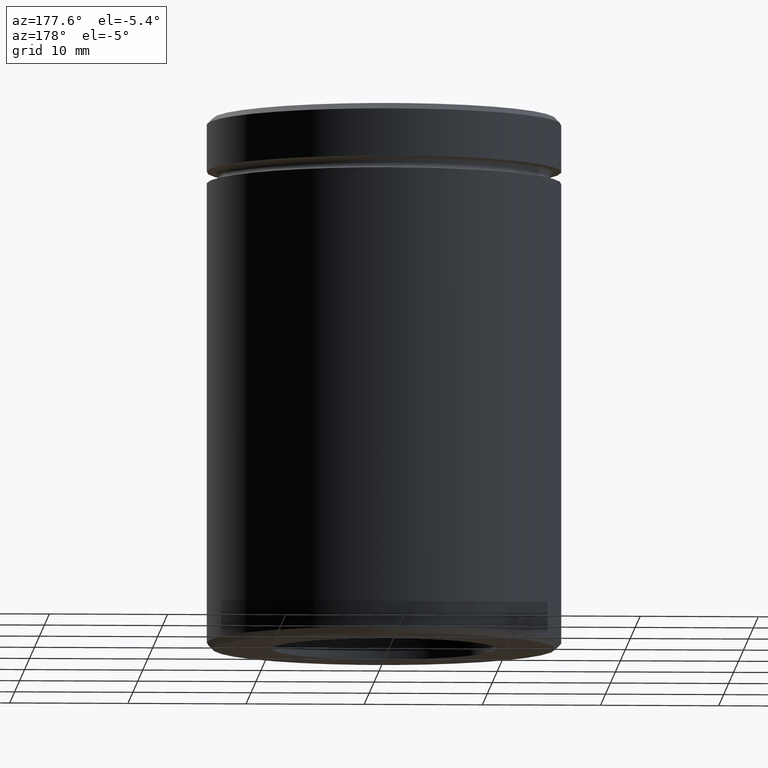
[diagram: clean part render]
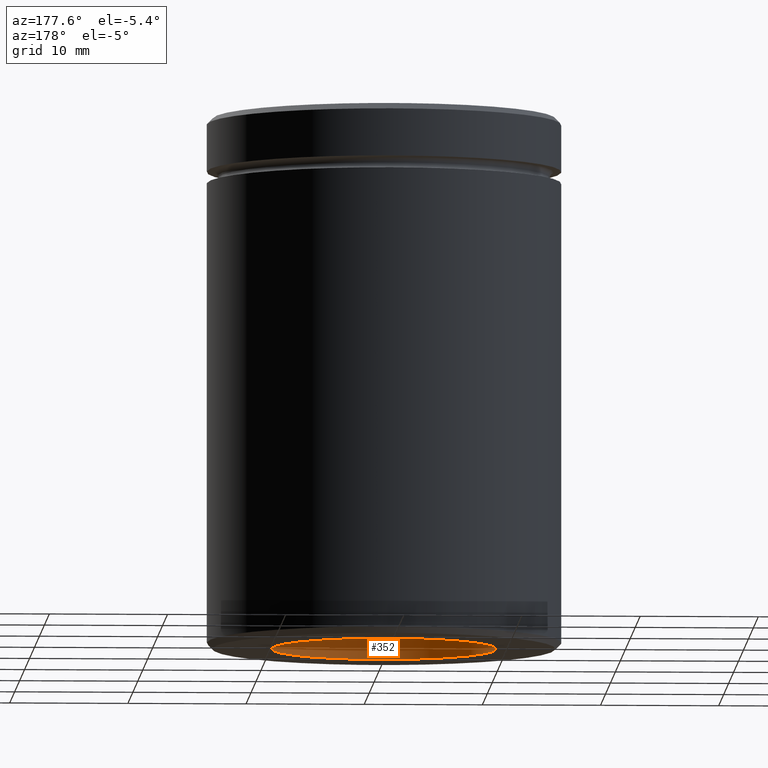
[diagram: same view with one face highlighted and labeled with its STEP entity id]
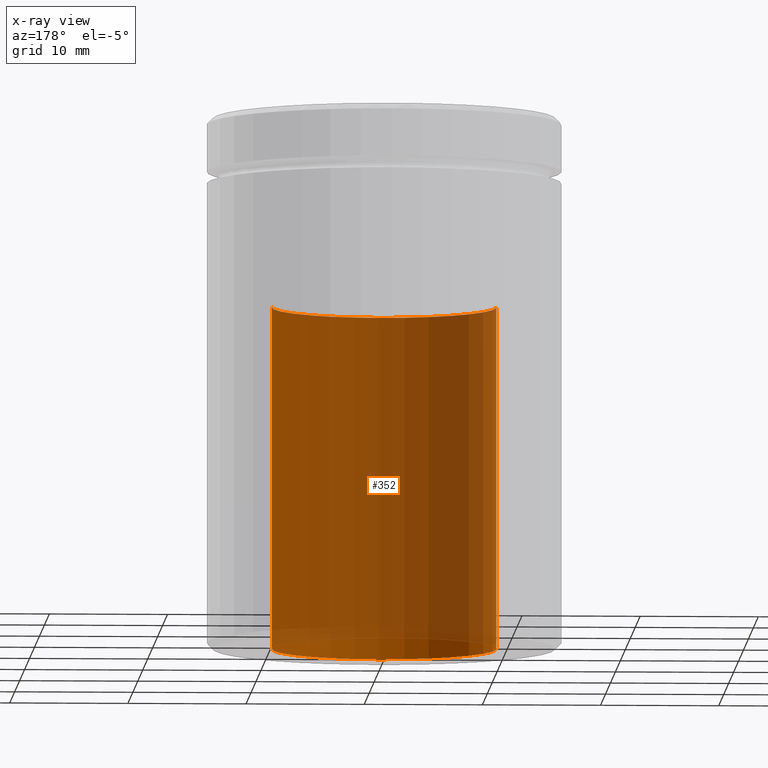
[diagram: x-ray of the same camera — body ghosted, the highlighted face saturated]
A machine part, auxiliary view. The second image highlights one B-rep face of the part: STEP entity #352.
The next image is the same camera in x-ray: the body ghosted, the highlighted face saturated — about 95% of this face is hidden behind the body in this view.
In plain terms, the highlighted cylindrical surface (partial cylindrical patch) has radius 9.5 mm, axis along (-0, -0, -1).
Its self-contained STEP definition (entity closure, byte-faithful):
#24 = CARTESIAN_POINT ( 'NONE',  ( 0.000000000000000000, 0.000000000000000000, -15.99999999999999645 ) ) ;
#30 = VERTEX_POINT ( 'NONE', #514 ) ;
#32 = EDGE_CURVE ( 'NONE', #236, #450, #42, .T. ) ;
#42 = LINE ( 'NONE', #222, #287 ) ;
#97 = DIRECTION ( 'NONE',  ( -0.000000000000000000, -0.000000000000000000, -1.000000000000000000 ) ) ;
#113 = EDGE_LOOP ( 'NONE', ( #402, #527, #526, #225 ) ) ;
#152 = DIRECTION ( 'NONE',  ( 0.000000000000000000, 0.000000000000000000, -1.000000000000000000 ) ) ;
#155 = DIRECTION ( 'NONE',  ( -1.000000000000000000, 0.000000000000000000, 0.000000000000000000 ) ) ;
#164 = DIRECTION ( 'NONE',  ( -1.000000000000000000, 0.000000000000000000, 0.000000000000000000 ) ) ;
#168 = CARTESIAN_POINT ( 'NONE',  ( 9.500000000000000000, 1.163414459189985288E-15, -45.00000000000000000 ) ) ;
#172 = DIRECTION ( 'NONE',  ( -0.000000000000000000, -0.000000000000000000, -1.000000000000000000 ) ) ;
#200 = CYLINDRICAL_SURFACE ( 'NONE', #266, 9.500000000000000000 ) ;
#216 = EDGE_CURVE ( 'NONE', #450, #30, #460, .T. ) ;
#222 = CARTESIAN_POINT ( 'NONE',  ( 9.500000000000000000, 1.163414459189985288E-15, -15.99999999999999645 ) ) ;
#224 = VERTEX_POINT ( 'NONE', #532 ) ;
#225 = ORIENTED_EDGE ( 'NONE', *, *, #279, .F. ) ;
#230 = AXIS2_PLACEMENT_3D ( 'NONE', #512, #253, #164 ) ;
#233 = DIRECTION ( 'NONE',  ( -1.000000000000000000, 0.000000000000000000, 0.000000000000000000 ) ) ;
#236 = VERTEX_POINT ( 'NONE', #451 ) ;
#245 = DIRECTION ( 'NONE',  ( -0.000000000000000000, -0.000000000000000000, -1.000000000000000000 ) ) ;
#253 = DIRECTION ( 'NONE',  ( 0.000000000000000000, 0.000000000000000000, -1.000000000000000000 ) ) ;
#266 = AXIS2_PLACEMENT_3D ( 'NONE', #24, #245, #155 ) ;
#270 = CARTESIAN_POINT ( 'NONE',  ( 0.000000000000000000, 0.000000000000000000, -45.00000000000000000 ) ) ;
#279 = EDGE_CURVE ( 'NONE', #224, #30, #316, .T. ) ;
#287 = VECTOR ( 'NONE', #172, 1000.000000000000000 ) ;
#293 = VECTOR ( 'NONE', #97, 1000.000000000000000 ) ;
#316 = LINE ( 'NONE', #490, #293 ) ;
#325 = FACE_OUTER_BOUND ( 'NONE', #113, .T. ) ;
#352 = ADVANCED_FACE ( 'NONE', ( #325 ), #200, .F. ) ;
#353 = EDGE_CURVE ( 'NONE', #236, #224, #473, .T. ) ;
#367 = AXIS2_PLACEMENT_3D ( 'NONE', #270, #152, #233 ) ;
#402 = ORIENTED_EDGE ( 'NONE', *, *, #353, .F. ) ;
#450 = VERTEX_POINT ( 'NONE', #168 ) ;
#451 = CARTESIAN_POINT ( 'NONE',  ( 9.500000000000000000, 1.163414459189985288E-15, -15.99999999999999645 ) ) ;
#460 = CIRCLE ( 'NONE', #367, 9.500000000000000000 ) ;
#473 = CIRCLE ( 'NONE', #230, 9.500000000000000000 ) ;
#490 = CARTESIAN_POINT ( 'NONE',  ( -9.500000000000000000, 0.000000000000000000, -15.99999999999999645 ) ) ;
#512 = CARTESIAN_POINT ( 'NONE',  ( 0.000000000000000000, 0.000000000000000000, -15.99999999999999645 ) ) ;
#514 = CARTESIAN_POINT ( 'NONE',  ( -9.500000000000000000, 0.000000000000000000, -45.00000000000000000 ) ) ;
#526 = ORIENTED_EDGE ( 'NONE', *, *, #216, .T. ) ;
#527 = ORIENTED_EDGE ( 'NONE', *, *, #32, .T. ) ;
#532 = CARTESIAN_POINT ( 'NONE',  ( -9.500000000000000000, 0.000000000000000000, -15.99999999999999645 ) ) ;